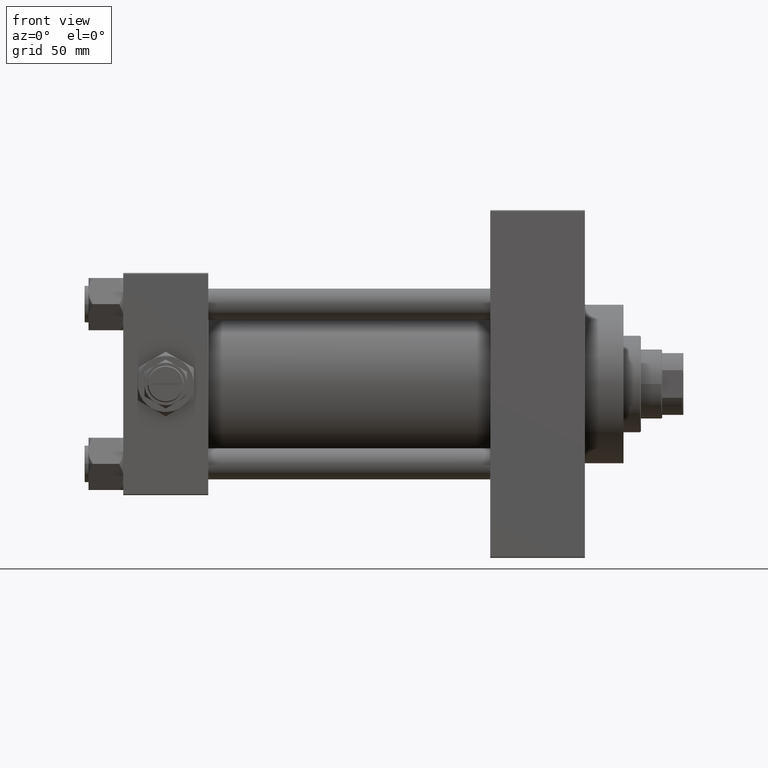
[diagram: clean part render]
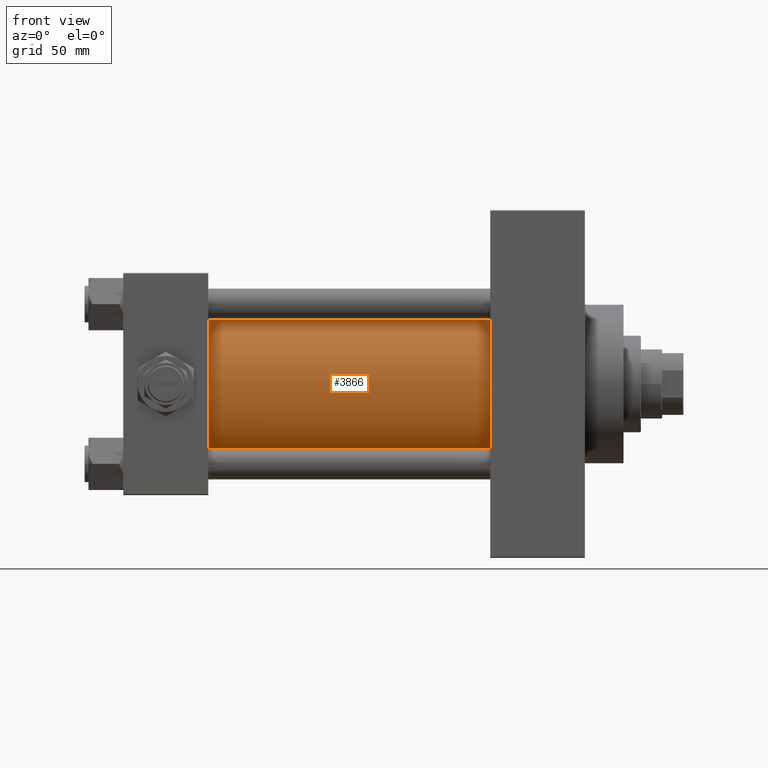
[diagram: same view with one face highlighted and labeled with its STEP entity id]
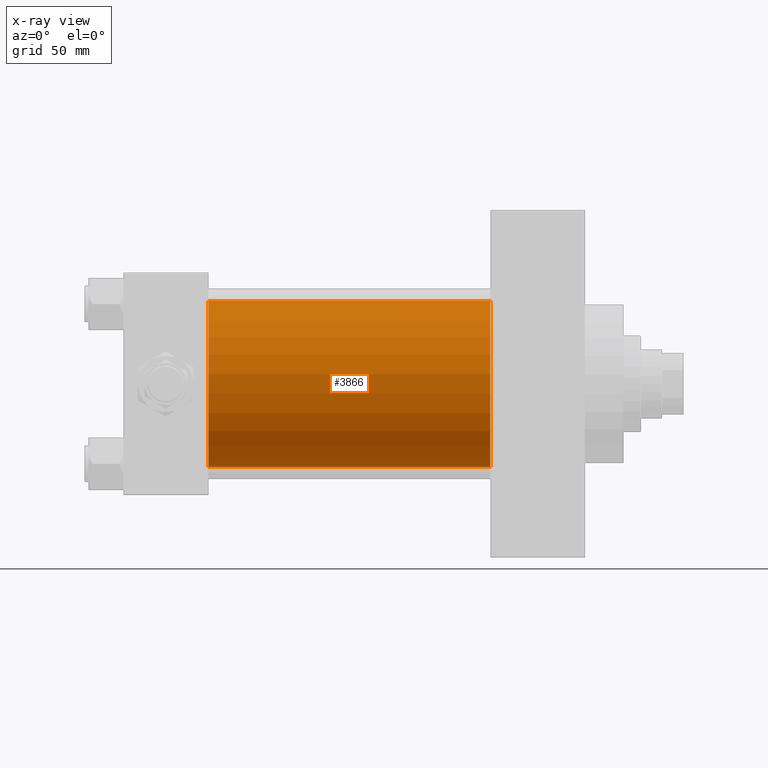
[diagram: x-ray of the same camera — body ghosted, the highlighted face saturated]
A machine part, front view. The second image highlights one B-rep face of the part: STEP entity #3866.
The next image is the same camera in x-ray: the body ghosted, the highlighted face saturated — about 2% of this face is hidden behind the body in this view.
In plain terms, the highlighted cylindrical surface (partial cylindrical patch) has radius 43 mm, axis along (-1, -0, -0).
Its self-contained STEP definition (entity closure, byte-faithful):
#712 = VERTEX_POINT ( 'NONE', #11773 ) ;
#1892 = VERTEX_POINT ( 'NONE', #13445 ) ;
#3866 = ADVANCED_FACE ( 'NONE', ( #16969 ), #9487, .T. ) ;
#4784 = DIRECTION ( 'NONE',  ( 0.000000000000000000, 0.000000000000000000, -1.000000000000000000 ) ) ;
#8996 = DIRECTION ( 'NONE',  ( -1.000000000000000000, -0.000000000000000000, -0.000000000000000000 ) ) ;
#9487 = CYLINDRICAL_SURFACE ( 'NONE', #44827, 43.00000000000000000 ) ;
#9548 = CARTESIAN_POINT ( 'NONE',  ( 43.99999999999998579, -2.602085213965210642E-15, 43.00000000000000000 ) ) ;
#11773 = CARTESIAN_POINT ( 'NONE',  ( 190.0000000000000000, -2.602085213965210642E-15, 43.00000000000000000 ) ) ;
#13067 = CIRCLE ( 'NONE', #25835, 43.00000000000000000 ) ;
#13239 = DIRECTION ( 'NONE',  ( -1.000000000000000000, -0.000000000000000000, -0.000000000000000000 ) ) ;
#13445 = CARTESIAN_POINT ( 'NONE',  ( 190.0000000000000000, 2.663896022368408223E-15, -43.00000000000000000 ) ) ;
#15989 = EDGE_CURVE ( 'NONE', #712, #1892, #25200, .T. ) ;
#16969 = FACE_OUTER_BOUND ( 'NONE', #36220, .T. ) ;
#17111 = CARTESIAN_POINT ( 'NONE',  ( 43.99999999999998579, -2.602085213965210642E-15, 0.000000000000000000 ) ) ;
#17188 = VERTEX_POINT ( 'NONE', #47302 ) ;
#19623 = AXIS2_PLACEMENT_3D ( 'NONE', #23271, #38535, #4784 ) ;
#20639 = EDGE_CURVE ( 'NONE', #712, #43570, #49215, .T. ) ;
#23271 = CARTESIAN_POINT ( 'NONE',  ( 190.0000000000000000, -2.602085213965210642E-15, 0.000000000000000000 ) ) ;
#24481 = DIRECTION ( 'NONE',  ( 0.000000000000000000, 0.000000000000000000, 1.000000000000000000 ) ) ;
#24488 = CARTESIAN_POINT ( 'NONE',  ( 190.0000000000000000, 2.663896022368408223E-15, -43.00000000000000000 ) ) ;
#25200 = CIRCLE ( 'NONE', #19623, 43.00000000000000000 ) ;
#25835 = AXIS2_PLACEMENT_3D ( 'NONE', #17111, #35892, #35153 ) ;
#27169 = VECTOR ( 'NONE', #8996, 1000.000000000000000 ) ;
#28270 = EDGE_CURVE ( 'NONE', #1892, #17188, #43246, .T. ) ;
#30965 = DIRECTION ( 'NONE',  ( -1.000000000000000000, -0.000000000000000000, -0.000000000000000000 ) ) ;
#30993 = VECTOR ( 'NONE', #30965, 1000.000000000000000 ) ;
#31033 = ORIENTED_EDGE ( 'NONE', *, *, #20639, .T. ) ;
#35040 = ORIENTED_EDGE ( 'NONE', *, *, #28270, .F. ) ;
#35153 = DIRECTION ( 'NONE',  ( 0.000000000000000000, 0.000000000000000000, 1.000000000000000000 ) ) ;
#35892 = DIRECTION ( 'NONE',  ( 1.000000000000000000, -0.000000000000000000, 0.000000000000000000 ) ) ;
#36220 = EDGE_LOOP ( 'NONE', ( #35040, #41792, #31033, #40821 ) ) ;
#36240 = CARTESIAN_POINT ( 'NONE',  ( 190.0000000000000000, -2.602085213965210642E-15, 0.000000000000000000 ) ) ;
#38535 = DIRECTION ( 'NONE',  ( 1.000000000000000000, 0.000000000000000000, 0.000000000000000000 ) ) ;
#38981 = EDGE_CURVE ( 'NONE', #43570, #17188, #13067, .T. ) ;
#40821 = ORIENTED_EDGE ( 'NONE', *, *, #38981, .T. ) ;
#41792 = ORIENTED_EDGE ( 'NONE', *, *, #15989, .F. ) ;
#43246 = LINE ( 'NONE', #24488, #27169 ) ;
#43570 = VERTEX_POINT ( 'NONE', #9548 ) ;
#44827 = AXIS2_PLACEMENT_3D ( 'NONE', #36240, #13239, #24481 ) ;
#47302 = CARTESIAN_POINT ( 'NONE',  ( 43.99999999999998579, 2.663896022368408223E-15, -43.00000000000000000 ) ) ;
#48962 = CARTESIAN_POINT ( 'NONE',  ( 190.0000000000000000, -2.602085213965210642E-15, 43.00000000000000000 ) ) ;
#49215 = LINE ( 'NONE', #48962, #30993 ) ;